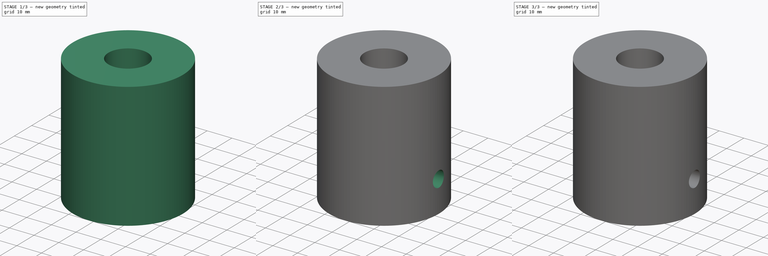
[diagram: build sequence overview — one tinted view per stage of 3, left to right]
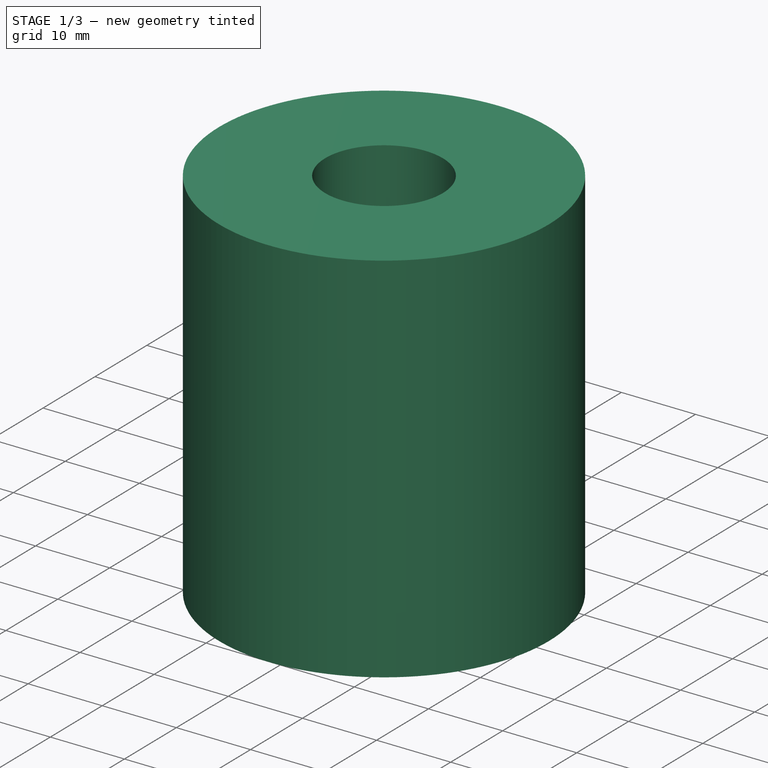
[diagram: stage 1 of 3 — iso view after this stage's code; geometry added in this stage tinted green]
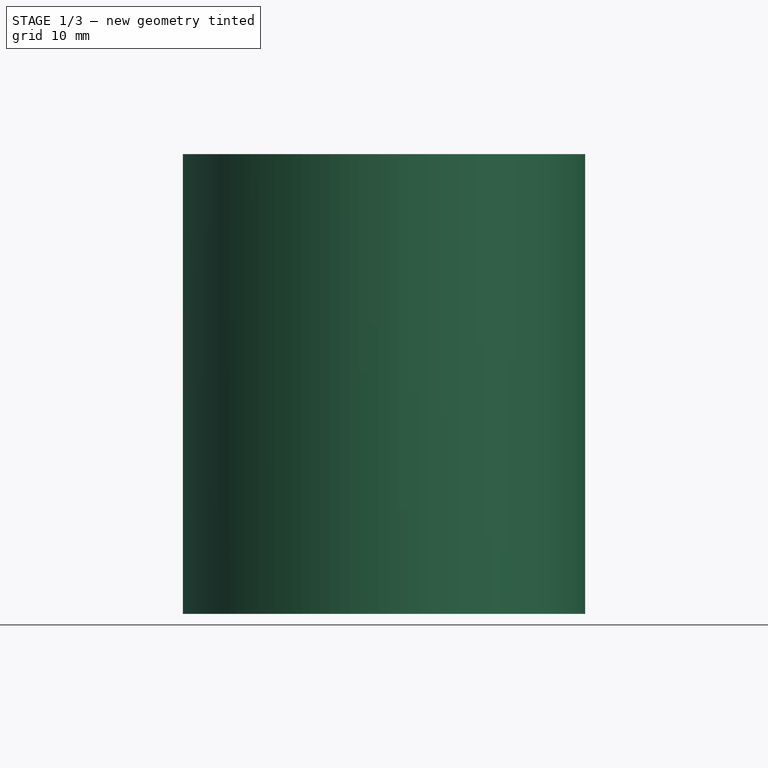
[diagram: stage 1 of 3 — front view after this stage's code; geometry added in this stage tinted green]
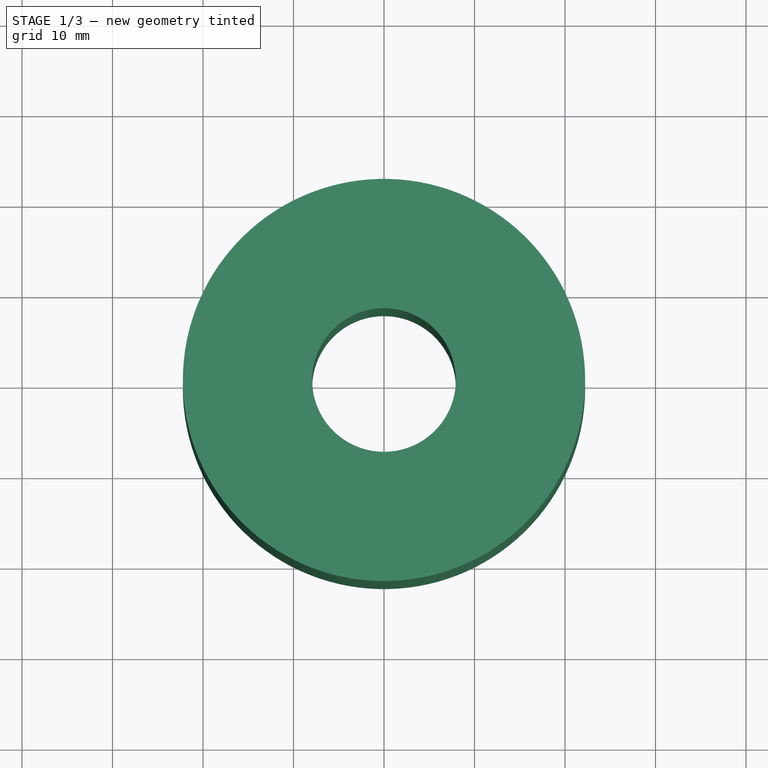
[diagram: stage 1 of 3 — top view after this stage's code; geometry added in this stage tinted green]
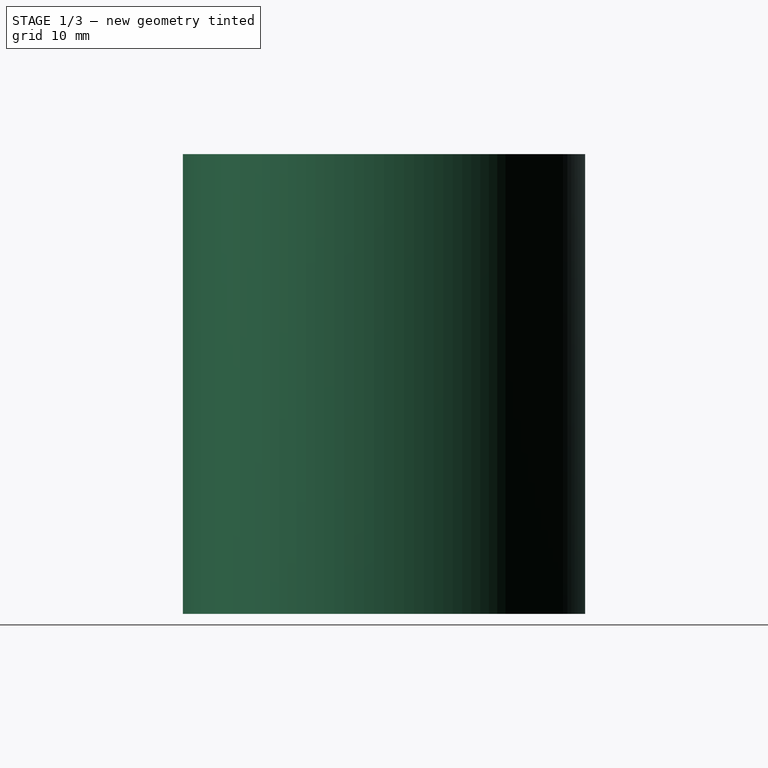
[diagram: stage 1 of 3 — right view after this stage's code; geometry added in this stage tinted green]
FCSTD DOCUMENT  (FreeCAD 0.16R6712 (Git))
Label: PC_1708_coupler
License: All rights reserved
LicenseURL: http://en.wikipedia.org/wiki/All_rights_reserved
objects: Sketcher::SketchObject×3, App::MeasureDistance×3, Part::Cylinder×2, PartDesign::Pocket×2, Part::Cut×1, PartDesign::Pad×1
note: 12 computed .brp shape members not serialized (recipe doc carries the construction recipe); baked Part::Feature solids carry a one-line shape summary decoded from their .brp

FEATURE [Part::Cylinder] Cylinder
  Angle = 360
  Height = 50.8
  Radius = 22.225
FEATURE [PartDesign::Pocket] Pocket
  Length = 5
  Sketch = -> Sketch
  Type = 1
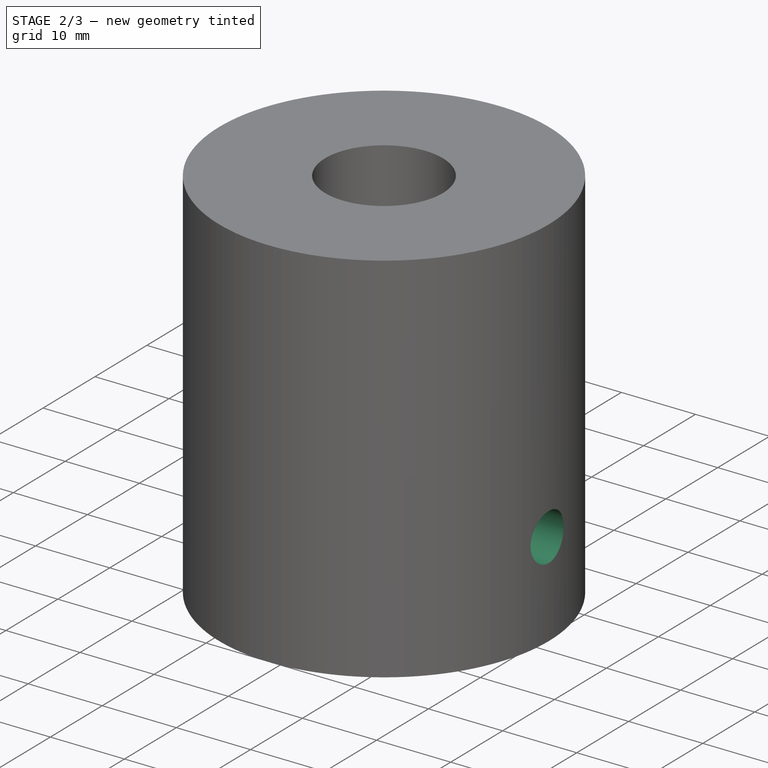
[diagram: stage 2 of 3 — iso view after this stage's code; geometry added in this stage tinted green]
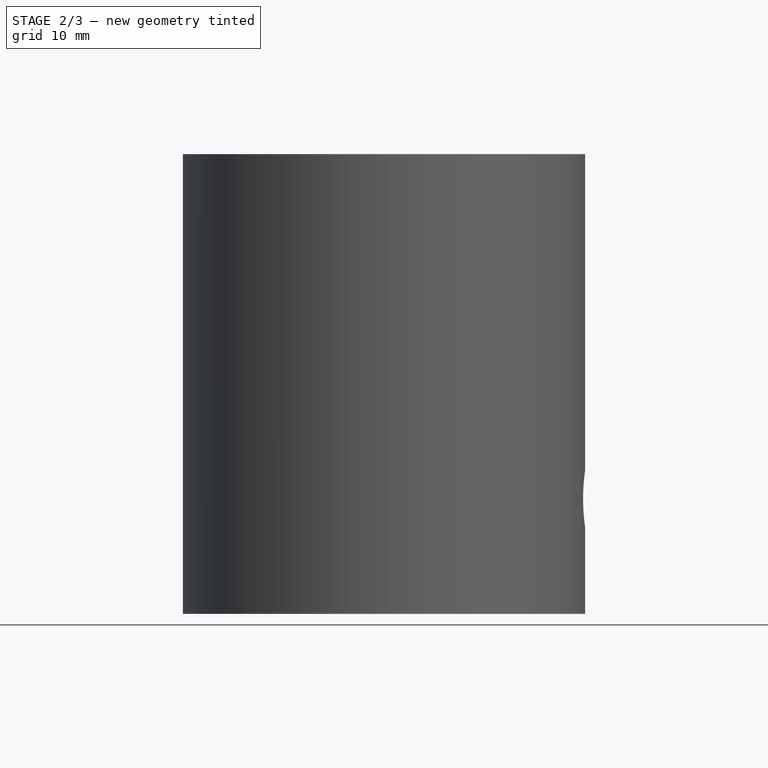
[diagram: stage 2 of 3 — front view after this stage's code; geometry added in this stage tinted green]
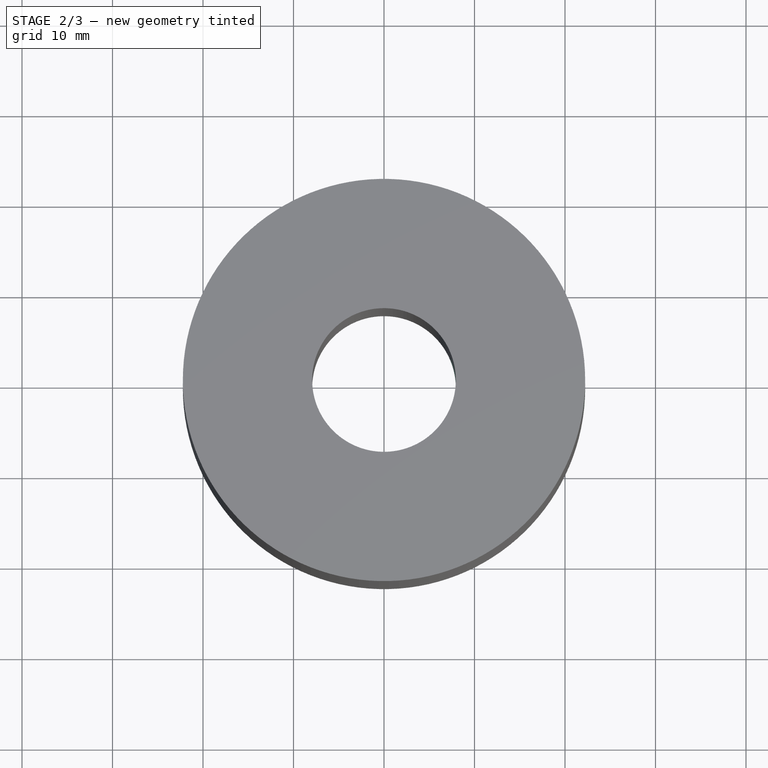
[diagram: stage 2 of 3 — top view after this stage's code; geometry added in this stage tinted green]
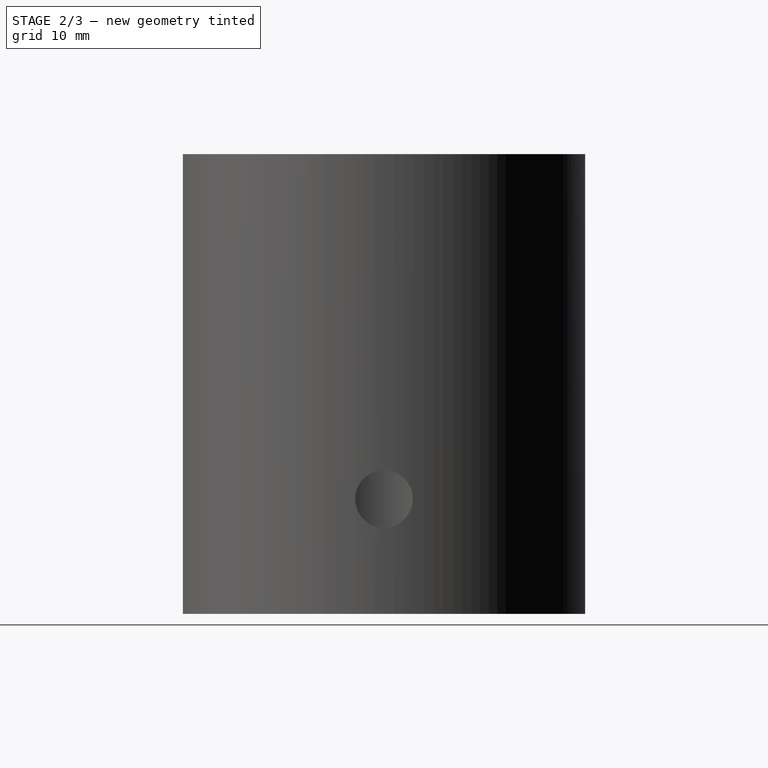
[diagram: stage 2 of 3 — right view after this stage's code; geometry added in this stage tinted green]
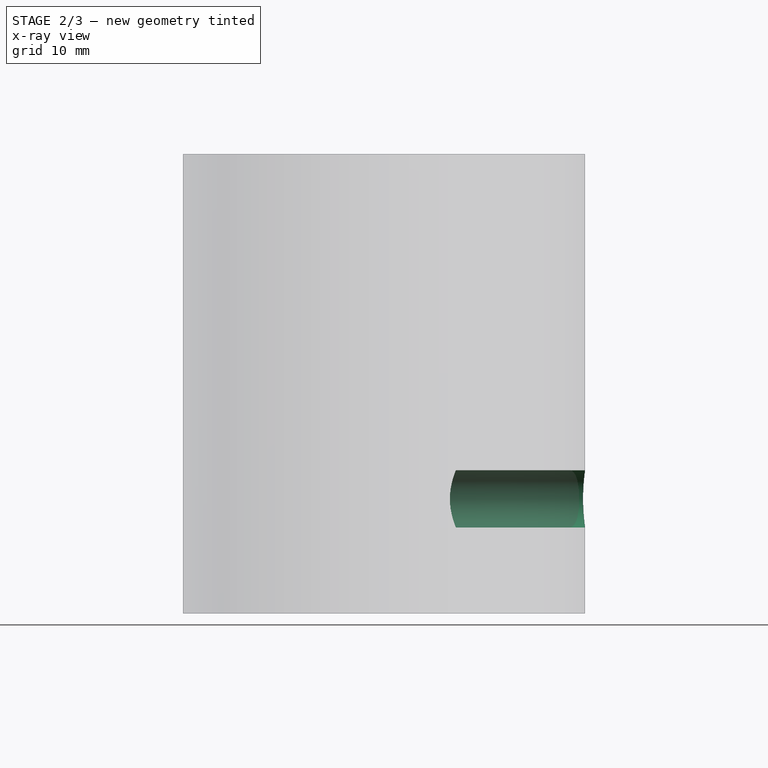
[diagram: stage 2 of 3 — x-ray composite at the front view; earlier geometry ghosted, this stage's added geometry solid]
FEATURE [Sketcher::SketchObject] Sketch
  Placement = pos=(0,0,50.8) rot=(0,0,1;0rad)
  Support = -> Cylinder [Face2]
  sketch-geometry (1):
    g0: Circle CenterX=0 CenterY=0 CenterZ=0 NormalX=0 NormalY=0 NormalZ=1 Radius=7.9375
  constraints (2):
    c: Coincident(g0,g-1)
    c: Radius(g0) = 7.9375
FEATURE [Part::Cylinder] Cylinder001
  Angle = 360
  Height = 25.4
  Placement = pos=(1.93153,0,12.7) rot=(0,1,0;1.5708rad)
  Radius = 3.175
FEATURE [Part::Cut] Cut
  Base = -> Pocket
  Tool = -> Cylinder001
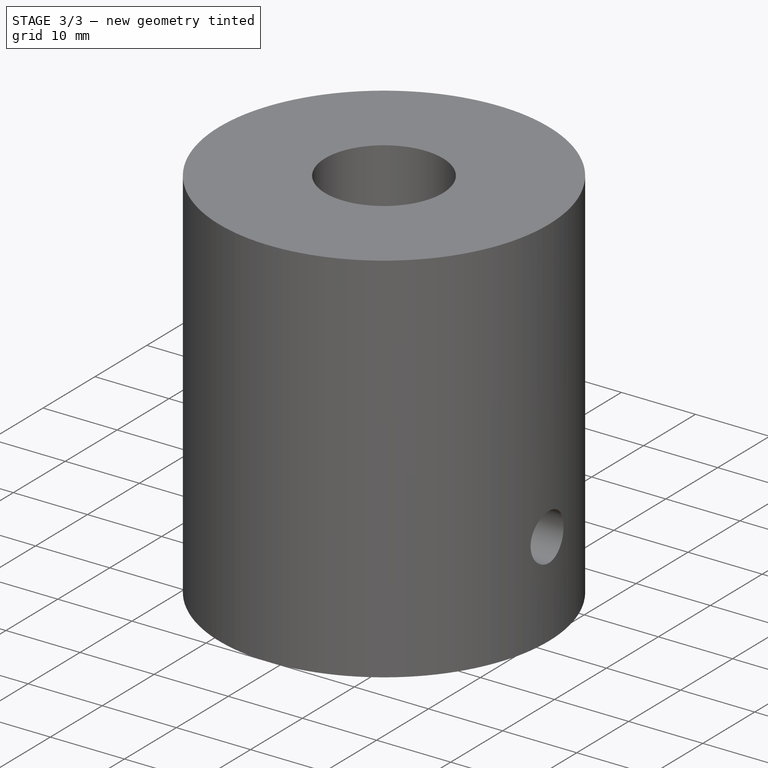
[diagram: stage 3 of 3 — iso view after this stage's code; geometry added in this stage tinted green]
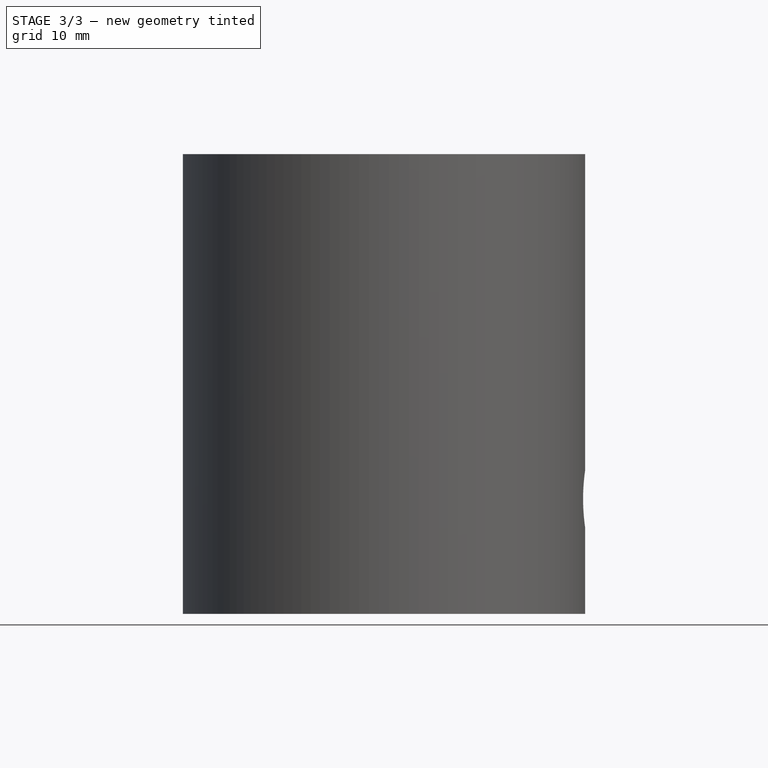
[diagram: stage 3 of 3 — front view after this stage's code; geometry added in this stage tinted green]
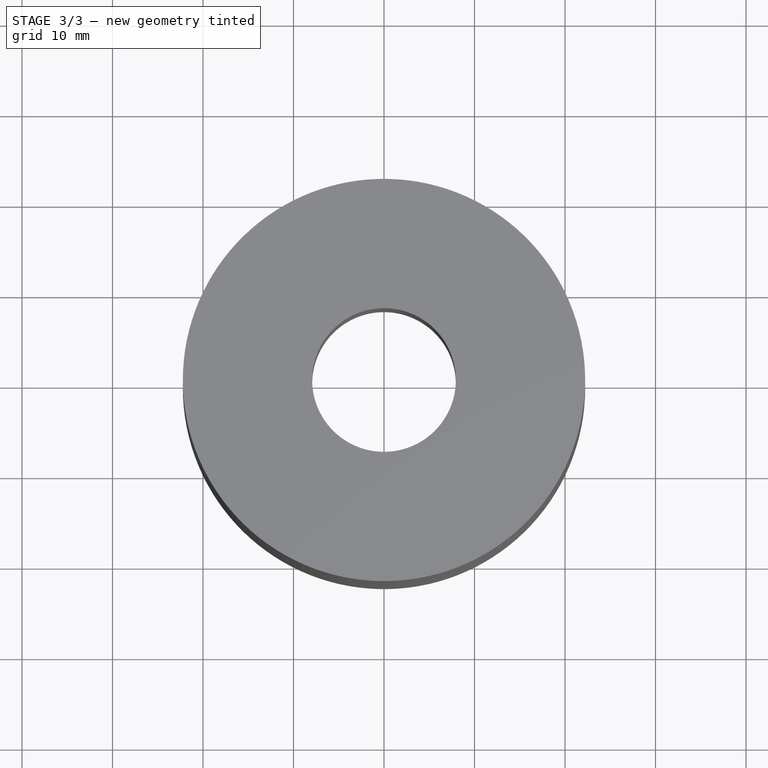
[diagram: stage 3 of 3 — top view after this stage's code; geometry added in this stage tinted green]
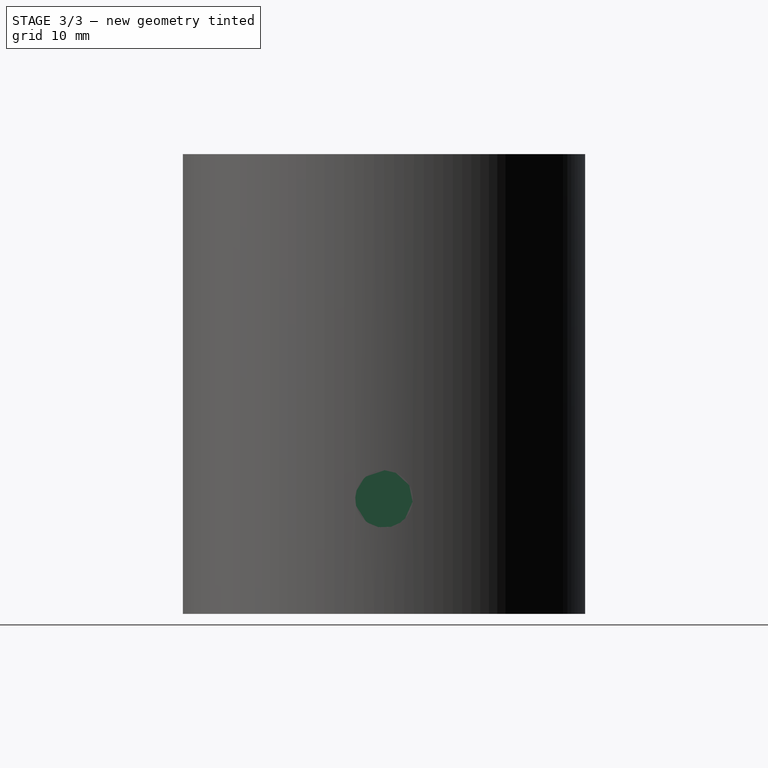
[diagram: stage 3 of 3 — right view after this stage's code; geometry added in this stage tinted green]
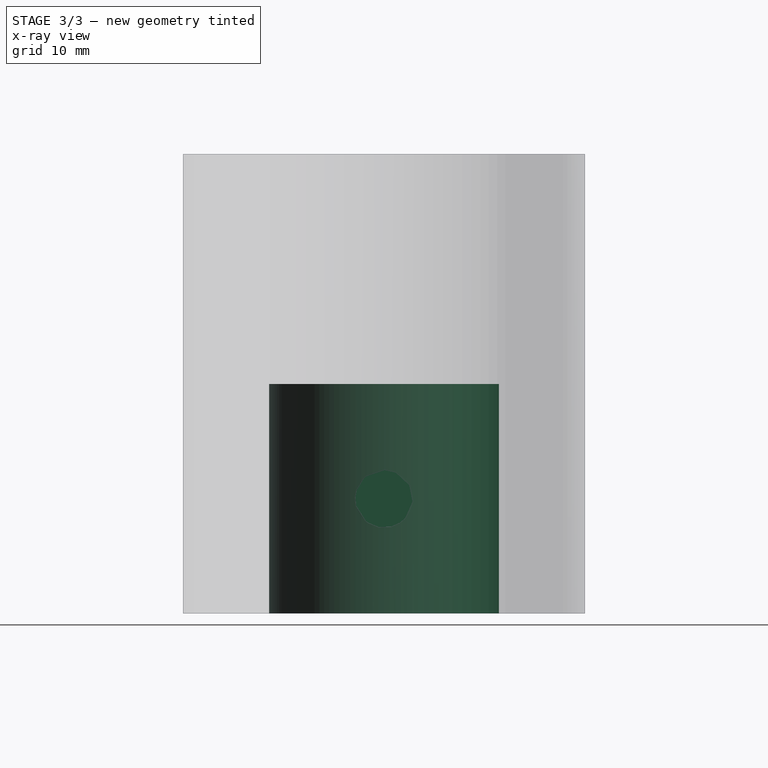
[diagram: stage 3 of 3 — x-ray composite at the right view; earlier geometry ghosted, this stage's added geometry solid]
FEATURE [Sketcher::SketchObject] Sketch001
  Placement = pos=(0,0,0) rot=(1,0,0;3.14159rad)
  Support = -> Cut [Face3]
  sketch-geometry (1):
    g0: Circle CenterX=0 CenterY=0 CenterZ=0 NormalX=0 NormalY=0 NormalZ=1 Radius=12.7
  constraints (2):
    c: Coincident(g0,g-1)
    c: Radius(g0) = 12.7
FEATURE [PartDesign::Pocket] Pocket001
  Length = 25.4
  Sketch = -> Sketch001
  Type = 0
FEATURE [Sketcher::SketchObject] Sketch002  label="0.25in square key"
  ExternalGeometry = -> [Pocket001]
  Placement = pos=(0,0,0) rot=(1,0,0;3.14159rad)
  Support = -> Pocket001 [Face3]
  sketch-geometry (8):
    g0: LineSegment StartX=9.525 StartY=3.175 StartZ=0 EndX=15.875 EndY=3.175 EndZ=0
    g1: LineSegment StartX=15.875 StartY=3.175 StartZ=0 EndX=15.875 EndY=-3.175 EndZ=0
    g2: LineSegment StartX=15.875 StartY=-3.175 StartZ=0 EndX=9.525 EndY=-3.175 EndZ=0
    g3: LineSegment StartX=9.525 StartY=-3.175 StartZ=0 EndX=9.525 EndY=3.175 EndZ=0
    g4: LineSegment [constr] StartX=9.525 StartY=3.175 StartZ=0 EndX=12.7 EndY=0 EndZ=0
    g5: LineSegment [constr] StartX=9.525 StartY=-3.175 StartZ=0 EndX=12.7 EndY=0 EndZ=0
    g6: LineSegment [constr] StartX=15.875 StartY=3.175 StartZ=0 EndX=12.7 EndY=0 EndZ=0
    g7: LineSegment [constr] StartX=15.875 StartY=-3.175 StartZ=0 EndX=12.7 EndY=0 EndZ=0
  constraints (24):
    c: Coincident(g0,g1)
    c: Coincident(g1,g2)
    c: Coincident(g2,g3)
    c: Coincident(g3,g0)
    c: Horizontal(g0)
    c: Horizontal(g2)
    c: Vertical(g1)
    c: Vertical(g3)
    c: Equal(g0,g3)
    c: Equal(g3,g2)
    c: Equal(g2,g1)
    c: DistanceX(g0,g0) = 6.35
    c: Symmetric(g2,g0,g-1)
    c: Coincident(g4,g0)
    c: Coincident(g5,g2)
    c: Coincident(g5,g4)
    c: Coincident(g6,g0)
    c: Coincident(g6,g4)
    c: Coincident(g7,g1)
    c: Coincident(g7,g4)
    c: Equal(g4,g6)
    c: Equal(g6,g7)
    c: Equal(g7,g5)
    c: PointOnObject(g4,g-3)
FEATURE [PartDesign::Pad] Pad  label="0.25in key"
  Length = 25.4
  Length2 = 100
  Reversed = true
  Sketch = -> Sketch002
  Type = 0
FEATURE [App::MeasureDistance] Distance  label="Distance: 0.623692 in"
  Distance = 15.8418
  P1 = (7.93364,0.0305216,50.8)
  P2 = (-7.87491,-0.994833,50.8)
FEATURE [App::MeasureDistance] Distance001  label="Distance: 0.998074 in"
  Distance = 25.3511
  P1 = (0.787747,-12.6755,0)
  P2 = (0.787747,12.6755,0)
FEATURE [App::MeasureDistance] Distance002  label="Distance: 0.249239 in"
  Distance = 6.33067
  P1 = (21.9985,3.16504,12.6164)
  P2 = (21.9988,-3.16301,12.7986)
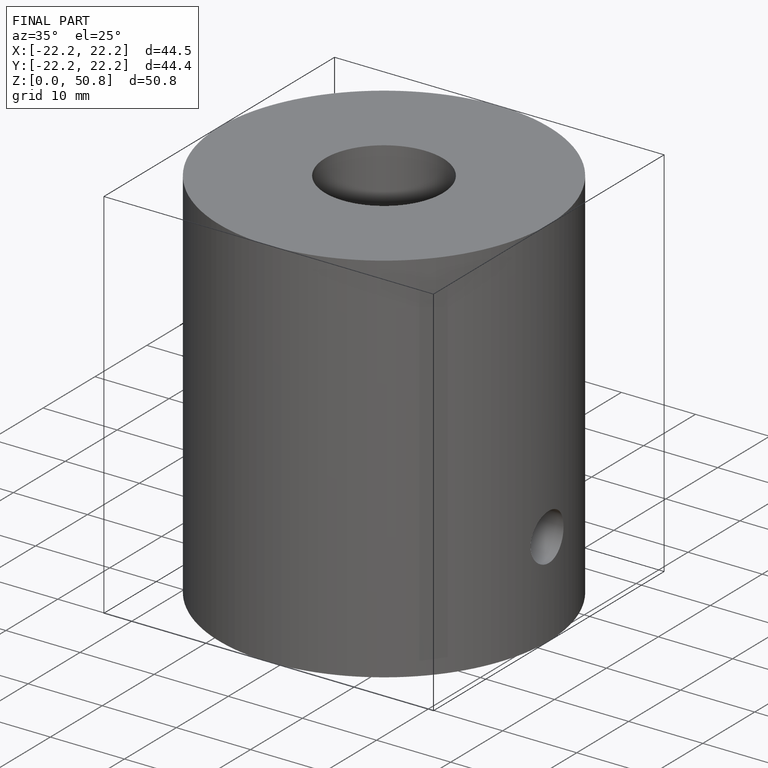
[diagram: finished part — iso view with bounding-box wireframe]
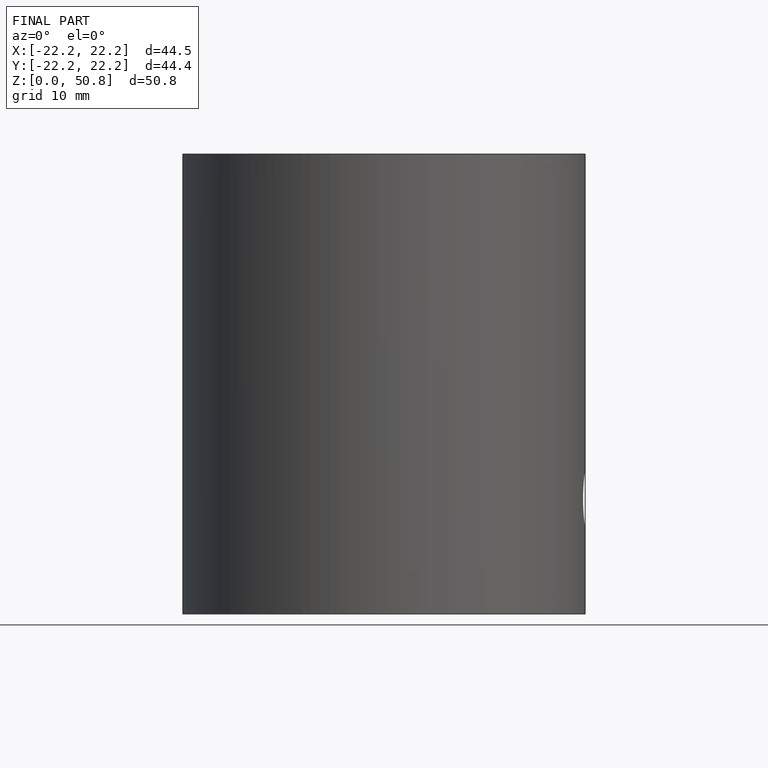
[diagram: finished part — front view with bounding-box wireframe]
